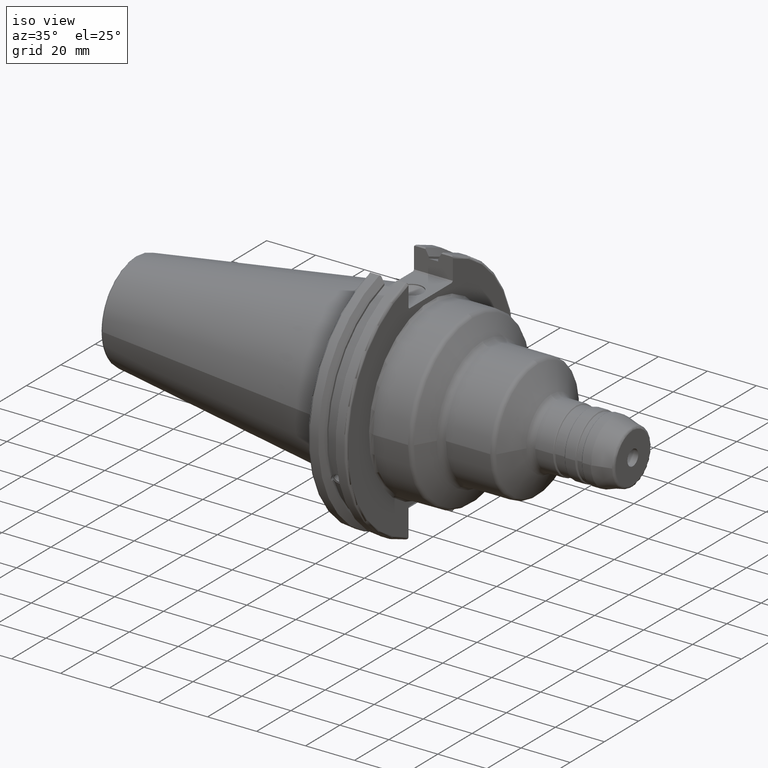
[diagram: clean part render]
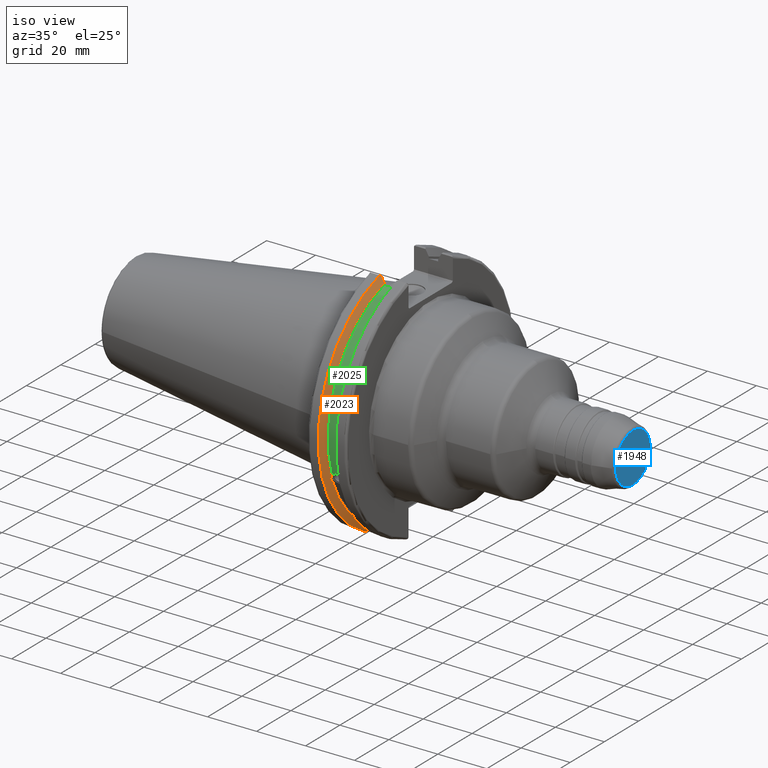
[diagram: same view with three faces highlighted in distinct colors, each labeled with its STEP entity id]
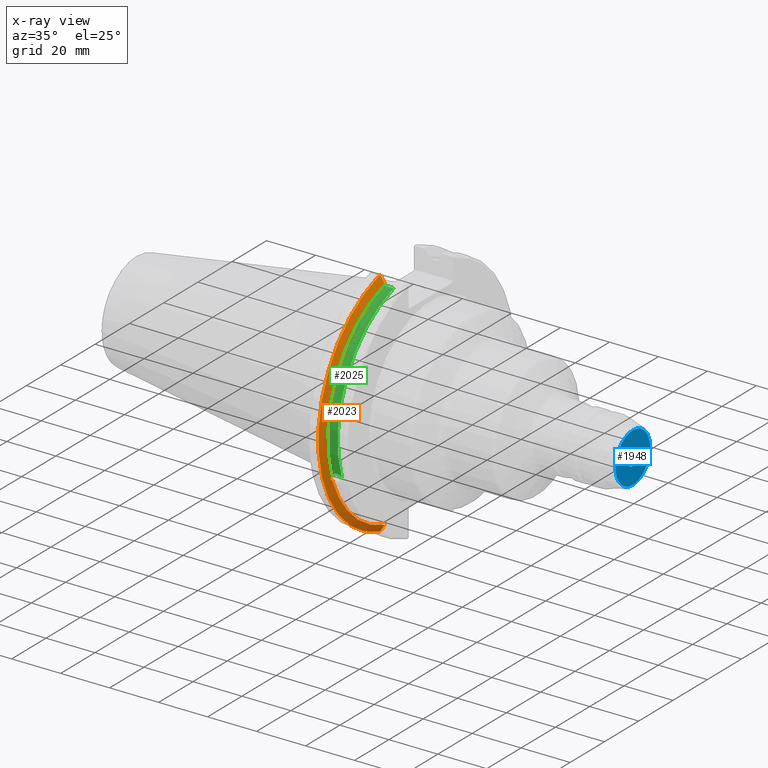
[diagram: x-ray of the same camera — body ghosted, the three highlighted faces saturated]
A machine part, iso view with three faces highlighted in distinct colors.
The next image is the same camera in x-ray (body ghosted, the three faces saturated) — at least one of them is partly hidden behind the body in this view.
Their STEP definitions:

[orange] entity #2023 — the highlighted conical surface has half-angle 60 deg.
#25=(
BOUNDED_CURVE()
B_SPLINE_CURVE(2,(#3844,#3845,#3846),.UNSPECIFIED.,.F.,.F.)
B_SPLINE_CURVE_WITH_KNOTS((3,3),(0.,0.275823910674601),.UNSPECIFIED.)
CURVE()
GEOMETRIC_REPRESENTATION_ITEM()
RATIONAL_B_SPLINE_CURVE((1.,1.00038235573593,1.00012873636487))
REPRESENTATION_ITEM('')
);
#26=(
BOUNDED_CURVE()
B_SPLINE_CURVE(2,(#3856,#3857,#3858),.UNSPECIFIED.,.F.,.F.)
B_SPLINE_CURVE_WITH_KNOTS((3,3),(0.0558332664507492,0.331657177124507),
 .UNSPECIFIED.)
CURVE()
GEOMETRIC_REPRESENTATION_ITEM()
RATIONAL_B_SPLINE_CURVE((1.00012873636807,1.00038235574544,1.))
REPRESENTATION_ITEM('')
);
#27=(
BOUNDED_CURVE()
B_SPLINE_CURVE(2,(#3891,#3892,#3893),.UNSPECIFIED.,.F.,.F.)
B_SPLINE_CURVE_WITH_KNOTS((3,3),(0.,0.0648240472897372),.UNSPECIFIED.)
CURVE()
GEOMETRIC_REPRESENTATION_ITEM()
RATIONAL_B_SPLINE_CURVE((1.,1.00011477674836,1.00019140645948))
REPRESENTATION_ITEM('')
);
#28=(
BOUNDED_CURVE()
B_SPLINE_CURVE(2,(#3899,#3900,#3901),.UNSPECIFIED.,.F.,.F.)
B_SPLINE_CURVE_WITH_KNOTS((3,3),(0.325260944932348,0.390084992222201),
 .UNSPECIFIED.)
CURVE()
GEOMETRIC_REPRESENTATION_ITEM()
RATIONAL_B_SPLINE_CURVE((1.00019140645916,1.00011477674817,1.))
REPRESENTATION_ITEM('')
);
#122=B_SPLINE_CURVE_WITH_KNOTS('',3,(#3355,#3356,#3357,#3358,#3359,#3360,
#3361,#3362,#3363,#3364,#3365,#3366,#3367,#3368),.UNSPECIFIED.,.F.,.F.,
(4,2,2,2,2,2,4),(0.426712868358719,0.441644498666906,0.48031331322313,0.518982127779354,
0.557650942335578,0.596319756891801,0.611251387199988),.UNSPECIFIED.);
#169=CONICAL_SURFACE('',#2296,47.8172386482472,1.0471975511966);
#278=FACE_OUTER_BOUND('',#409,.T.);
#409=EDGE_LOOP('',(#1861,#1862,#1863,#1864,#1865,#1866,#1867,#1868));
#721=CIRCLE('',#2196,46.4219772964944);
#747=CIRCLE('',#2250,49.2125);
#763=CIRCLE('',#2297,46.4219772964944);
#851=VERTEX_POINT('',#3352);
#852=VERTEX_POINT('',#3354);
#869=VERTEX_POINT('',#3444);
#941=VERTEX_POINT('',#3841);
#942=VERTEX_POINT('',#3843);
#945=VERTEX_POINT('',#3855);
#949=VERTEX_POINT('',#3889);
#950=VERTEX_POINT('',#3895);
#1093=EDGE_CURVE('',#852,#851,#122,.T.);
#1116=EDGE_CURVE('',#852,#869,#721,.T.);
#1211=EDGE_CURVE('',#942,#941,#25,.T.);
#1217=EDGE_CURVE('',#945,#869,#26,.T.);
#1225=EDGE_CURVE('',#949,#941,#27,.T.);
#1227=EDGE_CURVE('',#949,#950,#747,.T.);
#1228=EDGE_CURVE('',#945,#950,#28,.T.);
#1270=EDGE_CURVE('',#942,#851,#763,.T.);
#1861=ORIENTED_EDGE('',*,*,#1093,.T.);
#1862=ORIENTED_EDGE('',*,*,#1270,.F.);
#1863=ORIENTED_EDGE('',*,*,#1211,.T.);
#1864=ORIENTED_EDGE('',*,*,#1225,.F.);
#1865=ORIENTED_EDGE('',*,*,#1227,.T.);
#1866=ORIENTED_EDGE('',*,*,#1228,.F.);
#1867=ORIENTED_EDGE('',*,*,#1217,.T.);
#1868=ORIENTED_EDGE('',*,*,#1116,.F.);
#2023=ADVANCED_FACE('',(#278),#169,.T.);
#2196=AXIS2_PLACEMENT_3D('',#3445,#2630,#2631);
#2250=AXIS2_PLACEMENT_3D('',#3897,#2791,#2792);
#2296=AXIS2_PLACEMENT_3D('',#4013,#2904,#2905);
#2297=AXIS2_PLACEMENT_3D('',#4014,#2906,#2907);
#2630=DIRECTION('center_axis',(1.,0.,0.));
#2631=DIRECTION('ref_axis',(0.,0.,-1.));
#2791=DIRECTION('center_axis',(1.,0.,0.));
#2792=DIRECTION('ref_axis',(0.,0.,-1.));
#2904=DIRECTION('center_axis',(-1.,0.,0.));
#2905=DIRECTION('ref_axis',(0.,-1.,-1.22464679914735E-16));
#2906=DIRECTION('center_axis',(1.,0.,0.));
#2907=DIRECTION('ref_axis',(0.,0.,-1.));
#3352=CARTESIAN_POINT('',(9.2191,-43.9096390749305,-15.0646464421033));
#3354=CARTESIAN_POINT('',(9.2191,-43.3201030900029,-16.684383248648));
#3355=CARTESIAN_POINT('Ctrl Pts',(9.21910000000001,-43.3201030900029,-16.6843832486479));
#3356=CARTESIAN_POINT('Ctrl Pts',(9.20211843903392,-43.3613106941341,-16.6592273018006));
#3357=CARTESIAN_POINT('Ctrl Pts',(9.18608675403322,-43.4012416983557,-16.6326763251437));
#3358=CARTESIAN_POINT('Ctrl Pts',(9.13238673845037,-43.5391037343221,-16.5325130832406));
#3359=CARTESIAN_POINT('Ctrl Pts',(9.09621610663556,-43.6406982153491,-16.441180795372));
#3360=CARTESIAN_POINT('Ctrl Pts',(9.04690868251975,-43.8110833825827,-16.2291323464527));
#3361=CARTESIAN_POINT('Ctrl Pts',(9.0341,-43.8794096049168,-16.10796730316));
#3362=CARTESIAN_POINT('Ctrl Pts',(9.0341,-43.9675796948952,-15.8657219718732));
#3363=CARTESIAN_POINT('Ctrl Pts',(9.04690868251975,-43.9931221605126,-15.7289849146254));
#3364=CARTESIAN_POINT('Ctrl Pts',(9.09621610663556,-43.9989016655819,-15.4570249042867));
#3365=CARTESIAN_POINT('Ctrl Pts',(9.13238673845037,-43.9797830409458,-15.3217566390708));
#3366=CARTESIAN_POINT('Ctrl Pts',(9.18608675403322,-43.9385582852181,-15.1564111356409));
#3367=CARTESIAN_POINT('Ctrl Pts',(9.20211843903392,-43.9250360001461,-15.1104047527575));
#3368=CARTESIAN_POINT('Ctrl Pts',(9.2191,-43.9096390749305,-15.0646464421033));
#3444=CARTESIAN_POINT('',(9.2191,-12.95,-44.5791147973604));
#3445=CARTESIAN_POINT('Origin',(9.2191,0.,0.));
#3841=CARTESIAN_POINT('',(7.88638960562424,-12.95,46.9780755322918));
#3843=CARTESIAN_POINT('',(9.2191,-12.95,44.5791147973604));
#3844=CARTESIAN_POINT('Ctrl Pts',(9.2191,-12.95,44.5791147973604));
#3845=CARTESIAN_POINT('Ctrl Pts',(8.57020449055857,-12.95,45.7494966802148));
#3846=CARTESIAN_POINT('Ctrl Pts',(7.88638960562424,-12.95,46.9780755322918));
#3855=CARTESIAN_POINT('',(7.88638960562425,-12.95,-46.9780755322918));
#3856=CARTESIAN_POINT('Ctrl Pts',(7.88638960562425,-12.95,-46.9780755322918));
#3857=CARTESIAN_POINT('Ctrl Pts',(8.57020449054166,-12.95,-45.7494966802452));
#3858=CARTESIAN_POINT('Ctrl Pts',(9.2191,-12.95,-44.5791147973604));
#3889=CARTESIAN_POINT('',(7.60799096595127,-13.4317035994433,47.3440544806494));
#3891=CARTESIAN_POINT('Ctrl Pts',(7.60799096595126,-13.4317035994433,47.3440544806494));
#3892=CARTESIAN_POINT('Ctrl Pts',(7.7482689666382,-13.1896660169966,47.1601640966265));
#3893=CARTESIAN_POINT('Ctrl Pts',(7.88638960562424,-12.95,46.9780755322918));
#3895=CARTESIAN_POINT('',(7.60799096595127,-13.4317035994433,-47.3440544806494));
#3897=CARTESIAN_POINT('Origin',(7.60799096595127,0.,0.));
#3899=CARTESIAN_POINT('Ctrl Pts',(7.88638960562425,-12.95,-46.9780755322918));
#3900=CARTESIAN_POINT('Ctrl Pts',(7.74826896663813,-13.1896660169967,-47.1601640966265));
#3901=CARTESIAN_POINT('Ctrl Pts',(7.60799096595127,-13.4317035994434,-47.3440544806494));
#4013=CARTESIAN_POINT('Origin',(8.41354548297563,0.,0.));
#4014=CARTESIAN_POINT('Origin',(9.2191,0.,0.));

[blue] entity #1948 — the highlighted planar face has unit normal (1, 0, 0).
#33=PLANE('',#2161);
#93=FACE_BOUND('',#318,.T.);
#203=FACE_OUTER_BOUND('',#317,.T.);
#317=EDGE_LOOP('',(#1466));
#318=EDGE_LOOP('',(#1467));
#703=CIRCLE('',#2159,10.082673012021);
#705=CIRCLE('',#2162,3.17499999999999);
#833=VERTEX_POINT('',#3186);
#834=VERTEX_POINT('',#3190);
#1068=EDGE_CURVE('',#833,#833,#703,.T.);
#1070=EDGE_CURVE('',#834,#834,#705,.T.);
#1466=ORIENTED_EDGE('',*,*,#1068,.F.);
#1467=ORIENTED_EDGE('',*,*,#1070,.F.);
#1948=ADVANCED_FACE('',(#203,#93),#33,.T.);
#2159=AXIS2_PLACEMENT_3D('',#3187,#2542,#2543);
#2161=AXIS2_PLACEMENT_3D('',#3189,#2546,#2547);
#2162=AXIS2_PLACEMENT_3D('',#3191,#2548,#2549);
#2542=DIRECTION('center_axis',(-1.,0.,0.));
#2543=DIRECTION('ref_axis',(0.,-1.,1.83697019872103E-16));
#2546=DIRECTION('center_axis',(1.,0.,0.));
#2547=DIRECTION('ref_axis',(0.,0.,-1.));
#2548=DIRECTION('center_axis',(1.,0.,0.));
#2549=DIRECTION('ref_axis',(0.,0.,-1.));
#3186=CARTESIAN_POINT('',(101.6,-1.2347713231021E-15,10.082673012021));
#3187=CARTESIAN_POINT('Origin',(101.6,0.,0.));
#3189=CARTESIAN_POINT('Origin',(101.6,3.17499999999999,0.));
#3190=CARTESIAN_POINT('',(101.6,-3.17499999999999,-3.88825358729283E-16));
#3191=CARTESIAN_POINT('Origin',(101.6,0.,0.));

[green] entity #2025 — the highlighted cylindrical surface (partial cylindrical patch) has radius 45.6435 mm, axis along (1, 0, 0).
#121=B_SPLINE_CURVE_WITH_KNOTS('',3,(#3338,#3339,#3340,#3341,#3342,#3343,
#3344,#3345,#3346,#3347,#3348,#3349,#3350,#3351),.UNSPECIFIED.,.F.,.F.,
(4,2,2,2,2,2,4),(0.40154831257669,0.474697095495631,0.553813286063443,0.632929476631254,
0.712045667199066,0.791161857766877,0.864310640685818),.UNSPECIFIED.);
#280=FACE_OUTER_BOUND('',#411,.T.);
#411=EDGE_LOOP('',(#1873,#1874,#1875,#1876));
#491=LINE('',#3850,#598);
#598=VECTOR('',#2773,10.);
#764=CIRCLE('',#2299,45.6435);
#765=CIRCLE('',#2301,45.6435);
#849=VERTEX_POINT('',#3335);
#850=VERTEX_POINT('',#3337);
#943=VERTEX_POINT('',#3847);
#944=VERTEX_POINT('',#3849);
#1091=EDGE_CURVE('',#850,#849,#121,.T.);
#1213=EDGE_CURVE('',#944,#943,#491,.T.);
#1271=EDGE_CURVE('',#943,#850,#764,.T.);
#1272=EDGE_CURVE('',#944,#849,#765,.T.);
#1873=ORIENTED_EDGE('',*,*,#1091,.T.);
#1874=ORIENTED_EDGE('',*,*,#1272,.F.);
#1875=ORIENTED_EDGE('',*,*,#1213,.T.);
#1876=ORIENTED_EDGE('',*,*,#1271,.T.);
#1914=CYLINDRICAL_SURFACE('',#2300,45.6435);
#2025=ADVANCED_FACE('',(#280),#1914,.T.);
#2299=AXIS2_PLACEMENT_3D('',#4016,#2910,#2911);
#2300=AXIS2_PLACEMENT_3D('',#4017,#2912,#2913);
#2301=AXIS2_PLACEMENT_3D('',#4018,#2914,#2915);
#2773=DIRECTION('',(-1.,0.,0.));
#2910=DIRECTION('center_axis',(1.,0.,0.));
#2911=DIRECTION('ref_axis',(0.,0.,-1.));
#2912=DIRECTION('center_axis',(1.,0.,0.));
#2913=DIRECTION('ref_axis',(0.,-0.888619069115281,0.458645996390125));
#2914=DIRECTION('center_axis',(1.,0.,0.));
#2915=DIRECTION('ref_axis',(0.,0.,-1.));
#3335=CARTESIAN_POINT('',(13.0491,-43.1779814500336,-14.7983448449669));
#3337=CARTESIAN_POINT('',(9.2191,-43.1779814500336,-14.7983448449669));
#3338=CARTESIAN_POINT('Ctrl Pts',(9.2191,-43.1779814500335,-14.7983448449669));
#3339=CARTESIAN_POINT('Ctrl Pts',(9.32532177598176,-43.2545173750974,-14.5750315766731));
#3340=CARTESIAN_POINT('Ctrl Pts',(9.47680807557665,-43.3223492818373,-14.3712521044637));
#3341=CARTESIAN_POINT('Ctrl Pts',(9.83560503400179,-43.4340904392251,-14.0300988117073));
#3342=CARTESIAN_POINT('Ctrl Pts',(10.0717203280543,-43.4832903960863,-13.8760243976176));
#3343=CARTESIAN_POINT('Ctrl Pts',(10.5891059167872,-43.54802519266,-13.6715068146718));
#3344=CARTESIAN_POINT('Ctrl Pts',(10.870379364774,-43.5636826100883,-13.6211104428929));
#3345=CARTESIAN_POINT('Ctrl Pts',(11.397820635226,-43.5636826100883,-13.6211104428929));
#3346=CARTESIAN_POINT('Ctrl Pts',(11.6790940832128,-43.54802519266,-13.6715068146718));
#3347=CARTESIAN_POINT('Ctrl Pts',(12.1964796719457,-43.4832903960863,-13.8760243976176));
#3348=CARTESIAN_POINT('Ctrl Pts',(12.4325949659982,-43.4340904392251,-14.0300988117073));
#3349=CARTESIAN_POINT('Ctrl Pts',(12.7913919244233,-43.3223492818373,-14.3712521044637));
#3350=CARTESIAN_POINT('Ctrl Pts',(12.9428782240182,-43.2545173750974,-14.5750315766731));
#3351=CARTESIAN_POINT('Ctrl Pts',(13.0491,-43.1779814500335,-14.7983448449669));
#3847=CARTESIAN_POINT('',(9.2191,-12.95,43.7678716897452));
#3849=CARTESIAN_POINT('',(13.0491,-12.95,43.7678716897452));
#3850=CARTESIAN_POINT('',(11.1341,-12.95,43.7678716897452));
#4016=CARTESIAN_POINT('Origin',(9.2191,0.,0.));
#4017=CARTESIAN_POINT('Origin',(11.1341,0.,0.));
#4018=CARTESIAN_POINT('Origin',(13.0491,0.,0.));